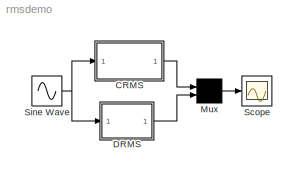
MODEL rmsdemo
KIND model
CONFIG AbsTol = 1e-10
CONFIG FixedStep = auto
CONFIG MaxStep = auto
CONFIG RelTol = 1e-8
CONFIG Solver = ode45
CONFIG SolverMode = SingleTasking
CONFIG StartTime = 0.0
CONFIG StopTime = 10.0
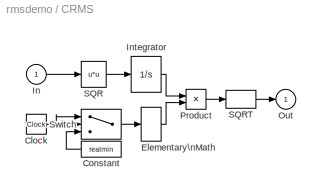
BLOCK [SubSystem] CRMS
  MaskDescription = Computes the cumulative root mean squared value of the input signal. The output is continuous.
  MaskDisplay = disp('Continuous\\nRMS');
  MaskIconFrame = on
  MaskIconOpaque = on
  MaskIconRotate = none
  MaskIconUnits = autoscale
  MaskType = Continuous RMS Value Block
  Ports = [1, 1, 0, 0, 0]
  ShowPortLabels = on
BLOCK [Clock] CRMS/Clock
  Decimation = 10
  DisplayTime = off
BLOCK [Constant] CRMS/Constant
  Value = realmin
BLOCK [ElementaryMath] CRMS/Elementary\nMath
  Operator = reciprocal
  Ports = [1, 1, 0, 0, 0]
BLOCK [Inport] CRMS/In
  Port = 1
  PortWidth = -1
  SampleTime = -1
BLOCK [Integrator] CRMS/Integrator
  AbsoluteTolerance = auto
  ExternalReset = none
  InitialCondition = 0
  InitialConditionSource = internal
  LimitOutput = on
  LowerSaturationLimit = 0
  Ports = [1, 1, 0, 0, 0]
  ShowSaturationPort = off
  ShowStatePort = off
  UpperSaturationLimit = inf
BLOCK [Outport] CRMS/Out
  InitialOutput = 0
  OutputWhenDisabled = held
  Port = 1
BLOCK [Product] CRMS/Product
  Inputs = 2
  Ports = [2, 1, 0, 0, 0]
BLOCK [Fcn] CRMS/SQR
  Expr = u*u
BLOCK [ElementaryMath] CRMS/SQRT
  Operator = sqrt
  Ports = [1, 1, 0, 0, 0]
BLOCK [Switch] CRMS/Switch
  Threshold = realmin
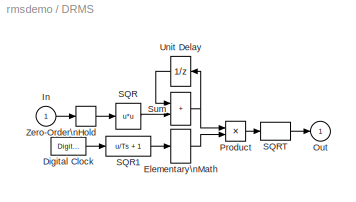
BLOCK [SubSystem] DRMS
  MaskDescription = Computes the cumulative root mean squared value of the sampled input input signal. The output is discrete.
  MaskDisplay = disp('Discrete\\nRMS')
  MaskEnableString = on
  MaskIconFrame = on
  MaskIconOpaque = on
  MaskIconRotate = none
  MaskIconUnits = autoscale
  MaskPromptString = Sampling Interval (s) :
  MaskStyleString = edit
  MaskTunableValueString = on
  MaskType = Discrete RMS Value Block
  MaskValueString = 0.5
  MaskVariables = Ts=@1;
  MaskVisibilityString = on
  Ports = [1, 1, 0, 0, 0]
  ShowPortLabels = on
BLOCK [DigitalClock] DRMS/Digital Clock
  SampleTime = Ts
BLOCK [ElementaryMath] DRMS/Elementary\nMath
  Operator = reciprocal
  Ports = [1, 1, 0, 0, 0]
BLOCK [Inport] DRMS/In
  Port = 1
  PortWidth = -1
  SampleTime = -1
BLOCK [Outport] DRMS/Out
  InitialOutput = 0
  OutputWhenDisabled = held
  Port = 1
BLOCK [Product] DRMS/Product
  Inputs = 2
  Ports = [2, 1, 0, 0, 0]
BLOCK [Fcn] DRMS/SQR
  Expr = u*u
BLOCK [Fcn] DRMS/SQR1
  Expr = u/Ts + 1
BLOCK [ElementaryMath] DRMS/SQRT
  Operator = sqrt
  Ports = [1, 1, 0, 0, 0]
BLOCK [Sum] DRMS/Sum
  IconShape = rectangular
  Inputs = ++
  Ports = [2, 1, 0, 0, 0]
BLOCK [UnitDelay] DRMS/Unit Delay
  SampleTime = Ts
  X0 = 0
BLOCK [ZeroOrderHold] DRMS/Zero-Order\nHold
  SampleTime = Ts
BLOCK [Mux] Mux
  DisplayOption = none
  Inputs = 2
  Ports = [2, 1, 0, 0, 0]
BLOCK [Scope] Scope
  DataFormat = matrix
  Decimation = 1
  Floating = off
  Grid = on
  LimitMaxRows = on
  MaxRows = 5000
  NumInputPorts = 1
  Ports = [1, 0, 0, 0, 0]
  SampleInput = off
  SampleTime = 0
  SaveName = ScopeData
  SaveToWorkspace = off
  TickLabels = on
  TimeRange = auto
  Titles = %s
  YMax = 1
  YMin = 0
  ZoomMode = on
BLOCK [Sin] Sine Wave
  Amplitude = 1
  Frequency = 1
  Phase = 0
  SampleTime = 0
NET CRMS/Clock:1 -> CRMS/Switch:1, CRMS/Switch:2
LINE CRMS/Constant:1 -> CRMS/Switch:3
LINE CRMS/Elementary\nMath:1 -> CRMS/Product:2
LINE CRMS/In:1 -> CRMS/SQR:1
LINE CRMS/Integrator:1 -> CRMS/Product:1
LINE CRMS/Product:1 -> CRMS/SQRT:1
LINE CRMS/SQR:1 -> CRMS/Integrator:1
LINE CRMS/SQRT:1 -> CRMS/Out:1
LINE CRMS/Switch:1 -> CRMS/Elementary\nMath:1
LINE CRMS:1 -> Mux:1
LINE DRMS/Digital Clock:1 -> DRMS/SQR1:1
LINE DRMS/Elementary\nMath:1 -> DRMS/Product:2
LINE DRMS/In:1 -> DRMS/Zero-Order\nHold:1
LINE DRMS/Product:1 -> DRMS/SQRT:1
LINE DRMS/SQR1:1 -> DRMS/Elementary\nMath:1
LINE DRMS/SQR:1 -> DRMS/Sum:2
LINE DRMS/SQRT:1 -> DRMS/Out:1
NET DRMS/Sum:1 -> DRMS/Product:1, DRMS/Unit Delay:1
LINE DRMS/Unit Delay:1 -> DRMS/Sum:1
LINE DRMS/Zero-Order\nHold:1 -> DRMS/SQR:1
LINE DRMS:1 -> Mux:2
LINE Mux:1 -> Scope:1
NET Sine Wave:1 -> CRMS:1, DRMS:1
note: NET lines group one-source signal fan-out (src -> all destinations, sorted); 1:1 wires keep LINE
